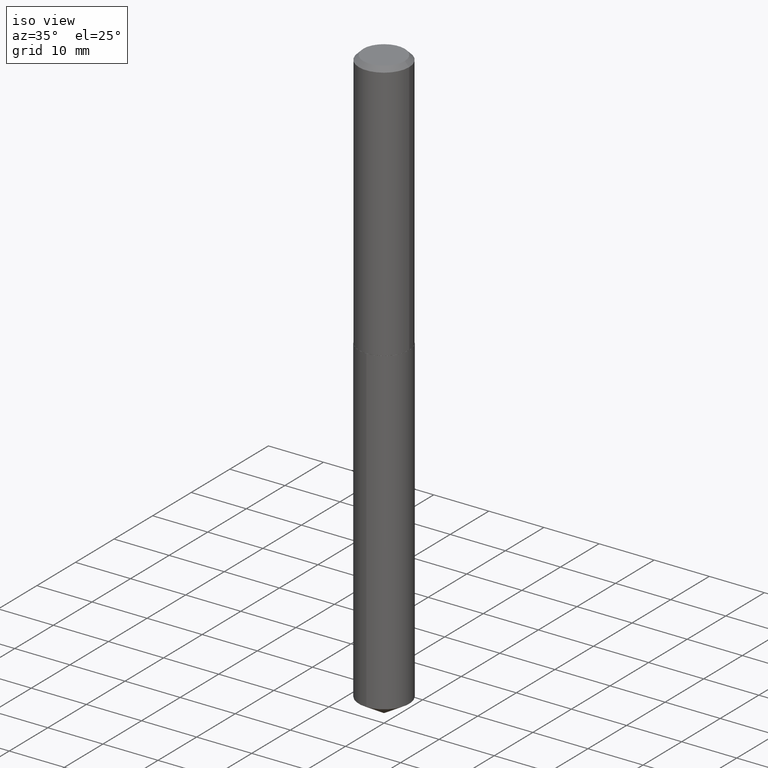
[diagram: clean part render]
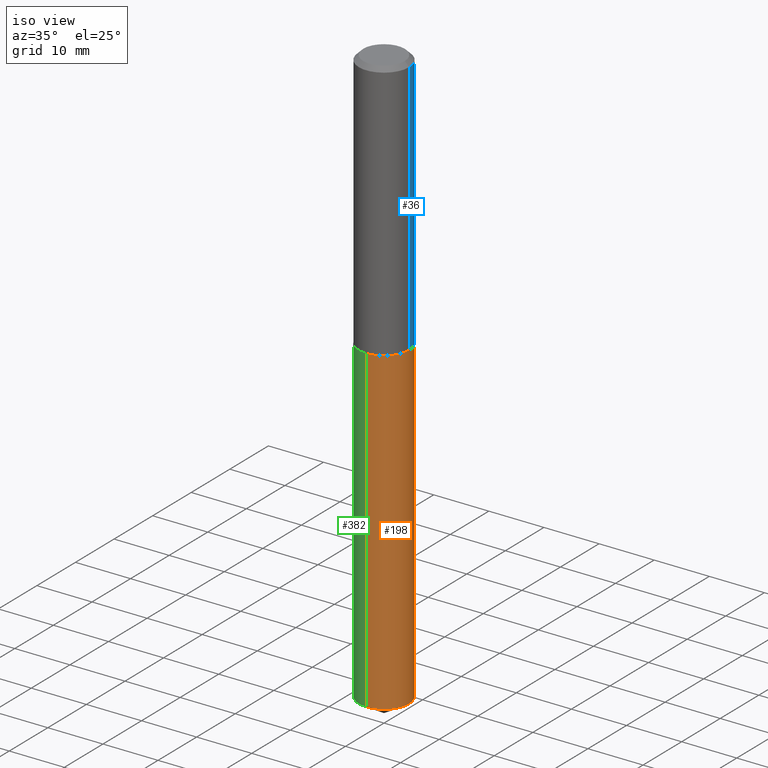
[diagram: same view with three faces highlighted in distinct colors, each labeled with its STEP entity id]
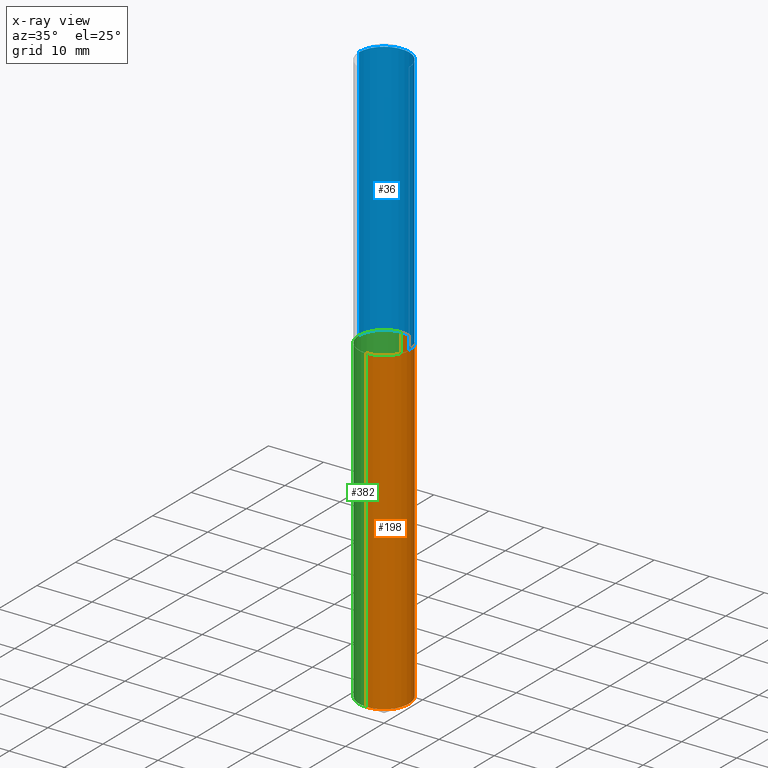
[diagram: x-ray of the same camera — body ghosted, the three highlighted faces saturated]
A machine part, iso view with three faces highlighted in distinct colors.
The next image is the same camera in x-ray (body ghosted, the three faces saturated) — at least one of them is partly hidden behind the body in this view.
Their STEP definitions:

[orange] entity #198 — the highlighted cylindrical surface (edge-blend (fillet) strip) has radius 4.5644 mm, axis along (-0, 0, 1).
#9 = DIRECTION ( 'NONE',  ( -6.982962677686265922E-15, -1.000000000000000000, 3.040454083098790380E-15 ) ) ;
#11 = DIRECTION ( 'NONE',  ( -2.445489564212384011E-29, 3.491451612166653483E-15, 1.000000000000000000 ) ) ;
#16 = CARTESIAN_POINT ( 'NONE',  ( 1.012924116273072671E-28, -1.446173634836522506E-14, -4.142025346760748405 ) ) ;
#17 = AXIS2_PLACEMENT_3D ( 'NONE', #16, #373, #229 ) ;
#21 = DIRECTION ( 'NONE',  ( -2.445489564212384011E-29, 3.491451612166653483E-15, 1.000000000000000000 ) ) ;
#51 = CARTESIAN_POINT ( 'NONE',  ( 1.276845296160945187E-15, 0.1796999999999935038, -1.859400000000000164 ) ) ;
#56 = DIRECTION ( 'NONE',  ( -2.445489564212384011E-29, 3.491451612166653483E-15, 1.000000000000000000 ) ) ;
#62 = EDGE_CURVE ( 'NONE', #367, #271, #154, .T. ) ;
#71 = ORIENTED_EDGE ( 'NONE', *, *, #62, .F. ) ;
#85 = CIRCLE ( 'NONE', #170, 0.1796999999999999986 ) ;
#95 = VECTOR ( 'NONE', #21, 39.37007874015748143 ) ;
#97 = CYLINDRICAL_SURFACE ( 'NONE', #325, 0.1796999999999999986 ) ;
#102 = VERTEX_POINT ( 'NONE', #225 ) ;
#113 = CARTESIAN_POINT ( 'NONE',  ( -1.254838393180120559E-15, -0.1797000000000144315, -4.142025346760747517 ) ) ;
#124 = CARTESIAN_POINT ( 'NONE',  ( -1.254838393180176568E-15, -0.1797000000000064934, -1.859399999999999054 ) ) ;
#139 = DIRECTION ( 'NONE',  ( -2.445489564212384011E-29, 3.491451612166653483E-15, 1.000000000000000000 ) ) ;
#147 = CARTESIAN_POINT ( 'NONE',  ( 1.276845296161000998E-15, 0.1796999999999854825, -4.142025346760748405 ) ) ;
#154 = LINE ( 'NONE', #308, #314 ) ;
#170 = AXIS2_PLACEMENT_3D ( 'NONE', #318, #56, #313 ) ;
#171 = ORIENTED_EDGE ( 'NONE', *, *, #258, .T. ) ;
#196 = CIRCLE ( 'NONE', #17, 0.1796999999999999986 ) ;
#198 = ADVANCED_FACE ( 'NONE', ( #360 ), #97, .T. ) ;
#216 = EDGE_CURVE ( 'NONE', #367, #329, #196, .T. ) ;
#221 = EDGE_LOOP ( 'NONE', ( #302, #171, #356, #71 ) ) ;
#225 = CARTESIAN_POINT ( 'NONE',  ( 1.276845296161001393E-15, 0.1796999999999935038, -1.859400000000000164 ) ) ;
#229 = DIRECTION ( 'NONE',  ( -6.982962677686265922E-15, -1.000000000000000000, 3.040454083098790380E-15 ) ) ;
#256 = EDGE_CURVE ( 'NONE', #271, #102, #85, .T. ) ;
#258 = EDGE_CURVE ( 'NONE', #329, #102, #341, .T. ) ;
#271 = VERTEX_POINT ( 'NONE', #124 ) ;
#302 = ORIENTED_EDGE ( 'NONE', *, *, #216, .T. ) ;
#308 = CARTESIAN_POINT ( 'NONE',  ( -1.254838393180176568E-15, -0.1797000000000064934, -1.859399999999999054 ) ) ;
#313 = DIRECTION ( 'NONE',  ( -6.982962677686265922E-15, -1.000000000000000000, 3.040454083098790380E-15 ) ) ;
#314 = VECTOR ( 'NONE', #11, 39.37007874015748143 ) ;
#318 = CARTESIAN_POINT ( 'NONE',  ( 4.547104698220641654E-29, -6.492060401444943851E-15, -1.859399999999999498 ) ) ;
#325 = AXIS2_PLACEMENT_3D ( 'NONE', #387, #139, #9 ) ;
#329 = VERTEX_POINT ( 'NONE', #147 ) ;
#341 = LINE ( 'NONE', #51, #95 ) ;
#356 = ORIENTED_EDGE ( 'NONE', *, *, #256, .F. ) ;
#360 = FACE_OUTER_BOUND ( 'NONE', #221, .T. ) ;
#367 = VERTEX_POINT ( 'NONE', #113 ) ;
#373 = DIRECTION ( 'NONE',  ( -2.445489564212384011E-29, 3.491451612166653483E-15, 1.000000000000000000 ) ) ;
#387 = CARTESIAN_POINT ( 'NONE',  ( 4.547104698220641654E-29, -6.492060401444943851E-15, -1.859399999999999498 ) ) ;

[blue] entity #36 — the highlighted cylindrical surface (edge-blend (fillet) strip) has radius 4.5644 mm, axis along (-0, 0, 1).
#22 = AXIS2_PLACEMENT_3D ( 'NONE', #206, #338, #284 ) ;
#31 = CIRCLE ( 'NONE', #59, 0.1796999999999999986 ) ;
#36 = ADVANCED_FACE ( 'NONE', ( #230 ), #182, .T. ) ;
#43 = VERTEX_POINT ( 'NONE', #149 ) ;
#45 = EDGE_CURVE ( 'NONE', #129, #43, #115, .T. ) ;
#58 = EDGE_CURVE ( 'NONE', #371, #43, #31, .T. ) ;
#59 = AXIS2_PLACEMENT_3D ( 'NONE', #354, #92, #307 ) ;
#61 = ORIENTED_EDGE ( 'NONE', *, *, #58, .F. ) ;
#92 = DIRECTION ( 'NONE',  ( -2.445468806185136597E-29, 3.491481338843145583E-15, 1.000000000000000000 ) ) ;
#115 = LINE ( 'NONE', #388, #152 ) ;
#121 = CARTESIAN_POINT ( 'NONE',  ( 4.545881963817549414E-29, -6.490314660775522348E-15, -1.858899999999999775 ) ) ;
#129 = VERTEX_POINT ( 'NONE', #319 ) ;
#142 = ORIENTED_EDGE ( 'NONE', *, *, #227, .T. ) ;
#149 = CARTESIAN_POINT ( 'NONE',  ( -0.1796999999999999986, -2.022866430146284319E-15, -0.03125000000000021511 ) ) ;
#152 = VECTOR ( 'NONE', #167, 39.37007874015748143 ) ;
#153 = CIRCLE ( 'NONE', #321, 0.1797000000000001929 ) ;
#155 = DIRECTION ( 'NONE',  ( -2.445468806185136877E-29, 3.491481338843145188E-15, 1.000000000000000000 ) ) ;
#167 = DIRECTION ( 'NONE',  ( -2.445468806185136877E-29, 3.491481338843145188E-15, 1.000000000000000000 ) ) ;
#177 = VERTEX_POINT ( 'NONE', #390 ) ;
#182 = CYLINDRICAL_SURFACE ( 'NONE', #22, 0.1797000000000001096 ) ;
#206 = CARTESIAN_POINT ( 'NONE',  ( 0.000000000000000000, 0.000000000000000000, 0.000000000000000000 ) ) ;
#220 = ORIENTED_EDGE ( 'NONE', *, *, #45, .T. ) ;
#227 = EDGE_CURVE ( 'NONE', #177, #129, #153, .T. ) ;
#230 = FACE_OUTER_BOUND ( 'NONE', #335, .T. ) ;
#238 = DIRECTION ( 'NONE',  ( -2.445468806185136597E-29, 3.491481338843145583E-15, 1.000000000000000000 ) ) ;
#253 = VECTOR ( 'NONE', #155, 39.37007874015748143 ) ;
#265 = DIRECTION ( 'NONE',  ( 1.000000000000000000, -6.982962677686265922E-15, 0.000000000000000000 ) ) ;
#284 = DIRECTION ( 'NONE',  ( 1.000000000000000000, -6.982962677686265922E-15, 4.876176775795935232E-29 ) ) ;
#300 = ORIENTED_EDGE ( 'NONE', *, *, #339, .F. ) ;
#307 = DIRECTION ( 'NONE',  ( 1.000000000000000000, -6.982962677686265922E-15, 0.000000000000000000 ) ) ;
#319 = CARTESIAN_POINT ( 'NONE',  ( -0.1797000000000001929, -5.213469364614620154E-15, -1.858899999999999775 ) ) ;
#321 = AXIS2_PLACEMENT_3D ( 'NONE', #121, #238, #265 ) ;
#335 = EDGE_LOOP ( 'NONE', ( #142, #220, #61, #300 ) ) ;
#336 = CARTESIAN_POINT ( 'NONE',  ( 0.1796999999999999986, -1.363947185019071028E-15, -0.03125000000000021511 ) ) ;
#338 = DIRECTION ( 'NONE',  ( -2.445468806185136597E-29, 3.491481338843145583E-15, 1.000000000000000000 ) ) ;
#339 = EDGE_CURVE ( 'NONE', #177, #371, #362, .T. ) ;
#354 = CARTESIAN_POINT ( 'NONE',  ( 7.642090019328603538E-31, -1.091087918388490390E-16, -0.03125000000000021511 ) ) ;
#362 = LINE ( 'NONE', #368, #253 ) ;
#368 = CARTESIAN_POINT ( 'NONE',  ( 0.1797000000000001096, -1.254838393180222716E-15, 8.762489666105301250E-30 ) ) ;
#371 = VERTEX_POINT ( 'NONE', #336 ) ;
#388 = CARTESIAN_POINT ( 'NONE',  ( -0.1797000000000001096, 1.276845296160900813E-15, -8.839326357188071190E-30 ) ) ;
#390 = CARTESIAN_POINT ( 'NONE',  ( 0.1797000000000001929, -7.745153053955744867E-15, -1.858899999999999775 ) ) ;

[green] entity #382 — the highlighted cylindrical surface (edge-blend (fillet) strip) has radius 4.5644 mm, axis along (-0, 0, 1).
#4 = EDGE_LOOP ( 'NONE', ( #39, #310, #257, #98 ) ) ;
#11 = DIRECTION ( 'NONE',  ( -2.445489564212384011E-29, 3.491451612166653483E-15, 1.000000000000000000 ) ) ;
#14 = DIRECTION ( 'NONE',  ( -2.445489564212384011E-29, 3.491451612166653483E-15, 1.000000000000000000 ) ) ;
#21 = DIRECTION ( 'NONE',  ( -2.445489564212384011E-29, 3.491451612166653483E-15, 1.000000000000000000 ) ) ;
#33 = CYLINDRICAL_SURFACE ( 'NONE', #158, 0.1796999999999999986 ) ;
#39 = ORIENTED_EDGE ( 'NONE', *, *, #258, .F. ) ;
#41 = CARTESIAN_POINT ( 'NONE',  ( 1.012924116273072671E-28, -1.446173634836522506E-14, -4.142025346760748405 ) ) ;
#51 = CARTESIAN_POINT ( 'NONE',  ( 1.276845296160945187E-15, 0.1796999999999935038, -1.859400000000000164 ) ) ;
#62 = EDGE_CURVE ( 'NONE', #367, #271, #154, .T. ) ;
#66 = AXIS2_PLACEMENT_3D ( 'NONE', #41, #14, #176 ) ;
#74 = DIRECTION ( 'NONE',  ( -2.445489564212384011E-29, 3.491451612166653483E-15, 1.000000000000000000 ) ) ;
#77 = CIRCLE ( 'NONE', #66, 0.1796999999999999986 ) ;
#93 = DIRECTION ( 'NONE',  ( -6.982962677686265922E-15, -1.000000000000000000, 3.040454083098790380E-15 ) ) ;
#95 = VECTOR ( 'NONE', #21, 39.37007874015748143 ) ;
#98 = ORIENTED_EDGE ( 'NONE', *, *, #134, .F. ) ;
#102 = VERTEX_POINT ( 'NONE', #225 ) ;
#113 = CARTESIAN_POINT ( 'NONE',  ( -1.254838393180120559E-15, -0.1797000000000144315, -4.142025346760747517 ) ) ;
#124 = CARTESIAN_POINT ( 'NONE',  ( -1.254838393180176568E-15, -0.1797000000000064934, -1.859399999999999054 ) ) ;
#125 = EDGE_CURVE ( 'NONE', #329, #367, #77, .T. ) ;
#134 = EDGE_CURVE ( 'NONE', #102, #271, #247, .T. ) ;
#147 = CARTESIAN_POINT ( 'NONE',  ( 1.276845296161000998E-15, 0.1796999999999854825, -4.142025346760748405 ) ) ;
#154 = LINE ( 'NONE', #308, #314 ) ;
#158 = AXIS2_PLACEMENT_3D ( 'NONE', #244, #74, #93 ) ;
#176 = DIRECTION ( 'NONE',  ( -6.982962677686265922E-15, -1.000000000000000000, 3.040454083098790380E-15 ) ) ;
#184 = DIRECTION ( 'NONE',  ( -6.982962677686265922E-15, -1.000000000000000000, 3.040454083098790380E-15 ) ) ;
#225 = CARTESIAN_POINT ( 'NONE',  ( 1.276845296161001393E-15, 0.1796999999999935038, -1.859400000000000164 ) ) ;
#244 = CARTESIAN_POINT ( 'NONE',  ( 4.547104698220641654E-29, -6.492060401444943851E-15, -1.859399999999999498 ) ) ;
#247 = CIRCLE ( 'NONE', #380, 0.1796999999999999986 ) ;
#257 = ORIENTED_EDGE ( 'NONE', *, *, #62, .T. ) ;
#258 = EDGE_CURVE ( 'NONE', #329, #102, #341, .T. ) ;
#271 = VERTEX_POINT ( 'NONE', #124 ) ;
#308 = CARTESIAN_POINT ( 'NONE',  ( -1.254838393180176568E-15, -0.1797000000000064934, -1.859399999999999054 ) ) ;
#310 = ORIENTED_EDGE ( 'NONE', *, *, #125, .T. ) ;
#314 = VECTOR ( 'NONE', #11, 39.37007874015748143 ) ;
#329 = VERTEX_POINT ( 'NONE', #147 ) ;
#340 = CARTESIAN_POINT ( 'NONE',  ( 4.547104698220641654E-29, -6.492060401444943851E-15, -1.859399999999999498 ) ) ;
#341 = LINE ( 'NONE', #51, #95 ) ;
#361 = FACE_OUTER_BOUND ( 'NONE', #4, .T. ) ;
#367 = VERTEX_POINT ( 'NONE', #113 ) ;
#375 = DIRECTION ( 'NONE',  ( -2.445489564212384011E-29, 3.491451612166653483E-15, 1.000000000000000000 ) ) ;
#380 = AXIS2_PLACEMENT_3D ( 'NONE', #340, #375, #184 ) ;
#382 = ADVANCED_FACE ( 'NONE', ( #361 ), #33, .T. ) ;